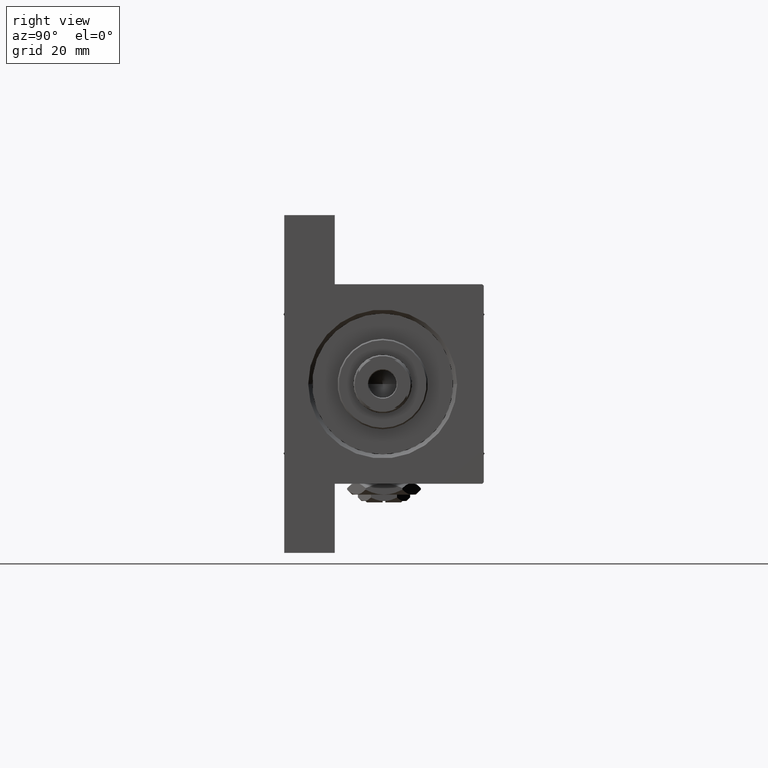
[diagram: clean part render]
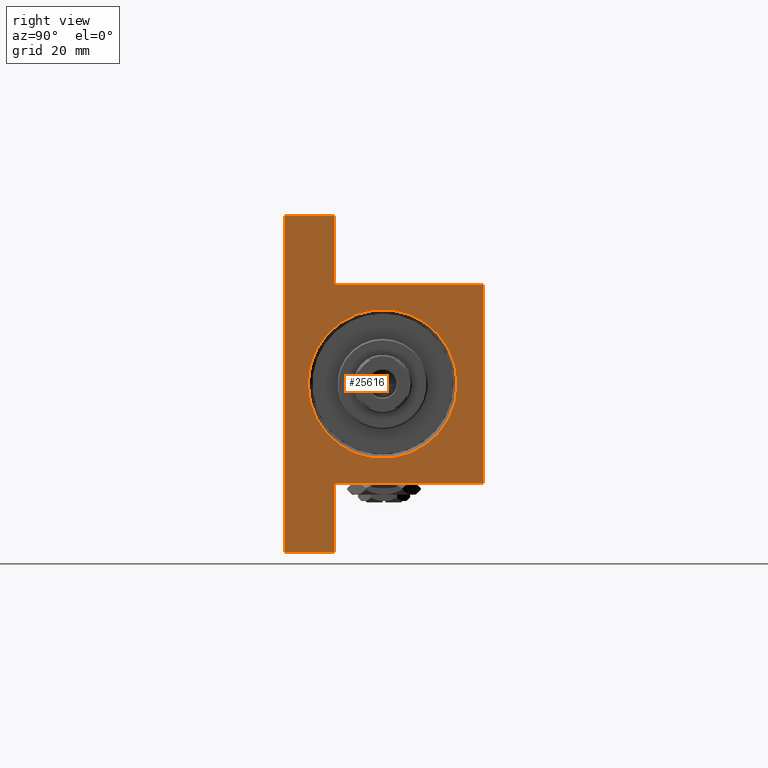
[diagram: same view with one face highlighted and labeled with its STEP entity id]
A machine part, right view. The second image highlights one B-rep face of the part: STEP entity #25616.
In plain terms, the highlighted planar face has unit normal (-1, 0, 0).
Its self-contained STEP definition (entity closure, byte-faithful):
#34 = CARTESIAN_POINT ( 'NONE',  ( 191.0000000000000000, 37.50000000000000000, -37.50000000000000000 ) ) ;
#407 = DIRECTION ( 'NONE',  ( -0.000000000000000000, -1.000000000000000000, -0.000000000000000000 ) ) ;
#412 = CARTESIAN_POINT ( 'NONE',  ( 191.0000000000000000, 37.00000000000005684, 37.49999999999999289 ) ) ;
#520 = VERTEX_POINT ( 'NONE', #23660 ) ;
#553 = FACE_OUTER_BOUND ( 'NONE', #7443, .T. ) ;
#2155 = DIRECTION ( 'NONE',  ( 0.000000000000000000, -1.000000000000000000, -1.850371707708594316E-16 ) ) ;
#2417 = EDGE_CURVE ( 'NONE', #520, #26001, #3513, .T. ) ;
#3074 = VERTEX_POINT ( 'NONE', #25211 ) ;
#3315 = CARTESIAN_POINT ( 'NONE',  ( 191.0000000000000000, 0.000000000000000000, -0.5000000000000004441 ) ) ;
#3513 = LINE ( 'NONE', #34, #23348 ) ;
#3894 = CARTESIAN_POINT ( 'NONE',  ( 191.0000000000000000, -63.50000000000002842, -18.50000000000000000 ) ) ;
#4162 = LINE ( 'NONE', #11368, #18719 ) ;
#4547 = DIRECTION ( 'NONE',  ( -1.000000000000000000, -0.000000000000000000, 0.000000000000000000 ) ) ;
#4565 = VERTEX_POINT ( 'NONE', #36025 ) ;
#4590 = AXIS2_PLACEMENT_3D ( 'NONE', #19468, #19713, #30951 ) ;
#5456 = VERTEX_POINT ( 'NONE', #39540 ) ;
#5462 = CARTESIAN_POINT ( 'NONE',  ( 191.0000000000000000, -63.50000000000002842, -37.50000000000000000 ) ) ;
#7443 = EDGE_LOOP ( 'NONE', ( #29495, #39894, #24976, #23344, #35840, #15301, #11487, #13224, #39026, #12570 ) ) ;
#7569 = ORIENTED_EDGE ( 'NONE', *, *, #46057, .T. ) ;
#7788 = LINE ( 'NONE', #34692, #47624 ) ;
#7935 = EDGE_CURVE ( 'NONE', #35357, #30790, #34539, .T. ) ;
#8459 = VECTOR ( 'NONE', #44906, 1000.000000000000000 ) ;
#9229 = VERTEX_POINT ( 'NONE', #12852 ) ;
#11138 = VECTOR ( 'NONE', #20826, 1000.000000000000000 ) ;
#11368 = CARTESIAN_POINT ( 'NONE',  ( 191.0000000000000000, -63.50000000000002842, -18.50000000000000000 ) ) ;
#11487 = ORIENTED_EDGE ( 'NONE', *, *, #20096, .T. ) ;
#12488 = EDGE_CURVE ( 'NONE', #9229, #520, #7788, .T. ) ;
#12570 = ORIENTED_EDGE ( 'NONE', *, *, #15390, .T. ) ;
#12776 = ORIENTED_EDGE ( 'NONE', *, *, #27838, .T. ) ;
#12852 = CARTESIAN_POINT ( 'NONE',  ( 191.0000000000000284, 63.50000000000000000, -18.50000000000000000 ) ) ;
#12954 = CIRCLE ( 'NONE', #25639, 27.99999999999999645 ) ;
#13097 = CARTESIAN_POINT ( 'NONE',  ( 191.0000000000000000, -37.50000000000000000, 37.49999999999997868 ) ) ;
#13224 = ORIENTED_EDGE ( 'NONE', *, *, #2417, .F. ) ;
#14294 = DIRECTION ( 'NONE',  ( -0.000000000000000000, -0.7071067811865279218, -0.7071067811865672237 ) ) ;
#14541 = CARTESIAN_POINT ( 'NONE',  ( 191.0000000000000000, 37.00000000000005684, 37.49999999999999289 ) ) ;
#15301 = ORIENTED_EDGE ( 'NONE', *, *, #30440, .T. ) ;
#15390 = EDGE_CURVE ( 'NONE', #9229, #47939, #49105, .T. ) ;
#15727 = PLANE ( 'NONE',  #4590 ) ;
#17581 = LINE ( 'NONE', #36779, #18753 ) ;
#18511 = CARTESIAN_POINT ( 'NONE',  ( 191.0000000000000000, -37.00000000000000000, 37.49999999999997868 ) ) ;
#18719 = VECTOR ( 'NONE', #19335, 1000.000000000000000 ) ;
#18753 = VECTOR ( 'NONE', #2155, 1000.000000000000000 ) ;
#18762 = LINE ( 'NONE', #33245, #22308 ) ;
#18997 = CARTESIAN_POINT ( 'NONE',  ( 191.0000000000000000, 37.50000000000000000, 37.49999999999999289 ) ) ;
#19221 = FACE_BOUND ( 'NONE', #42275, .T. ) ;
#19335 = DIRECTION ( 'NONE',  ( 0.000000000000000000, 0.000000000000000000, -1.000000000000000000 ) ) ;
#19468 = CARTESIAN_POINT ( 'NONE',  ( 191.0000000000000000, 0.000000000000000000, 0.000000000000000000 ) ) ;
#19713 = DIRECTION ( 'NONE',  ( -1.000000000000000000, -0.000000000000000000, 0.000000000000000000 ) ) ;
#20096 = EDGE_CURVE ( 'NONE', #5456, #26001, #4162, .T. ) ;
#20826 = DIRECTION ( 'NONE',  ( 0.000000000000000000, -9.251858538542972814E-17, -1.000000000000000000 ) ) ;
#21363 = AXIS2_PLACEMENT_3D ( 'NONE', #3315, #22736, #30227 ) ;
#21814 = EDGE_CURVE ( 'NONE', #30790, #37483, #17581, .T. ) ;
#22252 = EDGE_CURVE ( 'NONE', #35357, #47939, #37954, .T. ) ;
#22308 = VECTOR ( 'NONE', #14294, 1000.000000000000000 ) ;
#22699 = CARTESIAN_POINT ( 'NONE',  ( 191.0000000000000284, 63.50000000000000000, -18.50000000000000000 ) ) ;
#22736 = DIRECTION ( 'NONE',  ( -1.000000000000000000, -0.000000000000000000, 0.000000000000000000 ) ) ;
#22899 = CARTESIAN_POINT ( 'NONE',  ( 191.0000000000000000, 37.49999999999997868, -18.50000000000000000 ) ) ;
#23344 = ORIENTED_EDGE ( 'NONE', *, *, #37467, .T. ) ;
#23348 = VECTOR ( 'NONE', #33908, 1000.000000000000000 ) ;
#23660 = CARTESIAN_POINT ( 'NONE',  ( 191.0000000000000284, 63.50000000000000000, -37.50000000000000000 ) ) ;
#23747 = CIRCLE ( 'NONE', #21363, 27.99999999999999645 ) ;
#24469 = CARTESIAN_POINT ( 'NONE',  ( 191.0000000000000000, -37.50000000000000000, 36.99999999999995026 ) ) ;
#24976 = ORIENTED_EDGE ( 'NONE', *, *, #21814, .T. ) ;
#25211 = CARTESIAN_POINT ( 'NONE',  ( 191.0000000000000000, 0.000000000000000000, -28.49999999999999645 ) ) ;
#25616 = ADVANCED_FACE ( 'NONE', ( #19221, #553 ), #15727, .F. ) ;
#25639 = AXIS2_PLACEMENT_3D ( 'NONE', #27453, #4547, #49131 ) ;
#26001 = VERTEX_POINT ( 'NONE', #5462 ) ;
#27453 = CARTESIAN_POINT ( 'NONE',  ( 191.0000000000000000, 0.000000000000000000, -0.5000000000000004441 ) ) ;
#27838 = EDGE_CURVE ( 'NONE', #3074, #30386, #23747, .T. ) ;
#28723 = VERTEX_POINT ( 'NONE', #24469 ) ;
#29495 = ORIENTED_EDGE ( 'NONE', *, *, #22252, .F. ) ;
#30188 = DIRECTION ( 'NONE',  ( -1.067522139062649685E-15, -1.000000000000000000, 0.000000000000000000 ) ) ;
#30227 = DIRECTION ( 'NONE',  ( 0.000000000000000000, 0.000000000000000000, 1.000000000000000000 ) ) ;
#30386 = VERTEX_POINT ( 'NONE', #41503 ) ;
#30440 = EDGE_CURVE ( 'NONE', #4565, #5456, #35024, .T. ) ;
#30790 = VERTEX_POINT ( 'NONE', #14541 ) ;
#30810 = DIRECTION ( 'NONE',  ( 0.000000000000000000, -0.7071067811865474617, 0.7071067811865474617 ) ) ;
#30951 = DIRECTION ( 'NONE',  ( 0.000000000000000000, 0.000000000000000000, 1.000000000000000000 ) ) ;
#33245 = CARTESIAN_POINT ( 'NONE',  ( 191.0000000000000000, -37.50000000000000000, 36.99999999999995026 ) ) ;
#33908 = DIRECTION ( 'NONE',  ( 0.000000000000000000, -1.000000000000000000, 0.000000000000000000 ) ) ;
#34539 = LINE ( 'NONE', #412, #37882 ) ;
#34692 = CARTESIAN_POINT ( 'NONE',  ( 191.0000000000000284, 63.50000000000000000, -18.50000000000000000 ) ) ;
#35024 = LINE ( 'NONE', #3894, #38953 ) ;
#35357 = VERTEX_POINT ( 'NONE', #40126 ) ;
#35840 = ORIENTED_EDGE ( 'NONE', *, *, #36102, .T. ) ;
#36025 = CARTESIAN_POINT ( 'NONE',  ( 191.0000000000000000, -37.50000000000000711, -18.50000000000000355 ) ) ;
#36102 = EDGE_CURVE ( 'NONE', #28723, #4565, #39033, .T. ) ;
#36779 = CARTESIAN_POINT ( 'NONE',  ( 191.0000000000000000, 37.50000000000000000, 37.49999999999999289 ) ) ;
#37467 = EDGE_CURVE ( 'NONE', #37483, #28723, #18762, .T. ) ;
#37483 = VERTEX_POINT ( 'NONE', #18511 ) ;
#37882 = VECTOR ( 'NONE', #30810, 1000.000000000000114 ) ;
#37954 = LINE ( 'NONE', #18997, #8459 ) ;
#38953 = VECTOR ( 'NONE', #407, 1000.000000000000000 ) ;
#39026 = ORIENTED_EDGE ( 'NONE', *, *, #12488, .F. ) ;
#39033 = LINE ( 'NONE', #13097, #11138 ) ;
#39540 = CARTESIAN_POINT ( 'NONE',  ( 191.0000000000000000, -63.50000000000002842, -18.50000000000000000 ) ) ;
#39894 = ORIENTED_EDGE ( 'NONE', *, *, #7935, .T. ) ;
#40126 = CARTESIAN_POINT ( 'NONE',  ( 191.0000000000000000, 37.50000000000000000, 37.00000000000004974 ) ) ;
#41503 = CARTESIAN_POINT ( 'NONE',  ( 191.0000000000000000, 3.429011037612588881E-15, 27.49999999999999645 ) ) ;
#42153 = DIRECTION ( 'NONE',  ( 0.000000000000000000, 0.000000000000000000, -1.000000000000000000 ) ) ;
#42275 = EDGE_LOOP ( 'NONE', ( #12776, #7569 ) ) ;
#43385 = VECTOR ( 'NONE', #30188, 1000.000000000000000 ) ;
#44906 = DIRECTION ( 'NONE',  ( 0.000000000000000000, 0.000000000000000000, -1.000000000000000000 ) ) ;
#46057 = EDGE_CURVE ( 'NONE', #30386, #3074, #12954, .T. ) ;
#47624 = VECTOR ( 'NONE', #42153, 1000.000000000000000 ) ;
#47939 = VERTEX_POINT ( 'NONE', #22899 ) ;
#49105 = LINE ( 'NONE', #22699, #43385 ) ;
#49131 = DIRECTION ( 'NONE',  ( 0.000000000000000000, 0.000000000000000000, 1.000000000000000000 ) ) ;